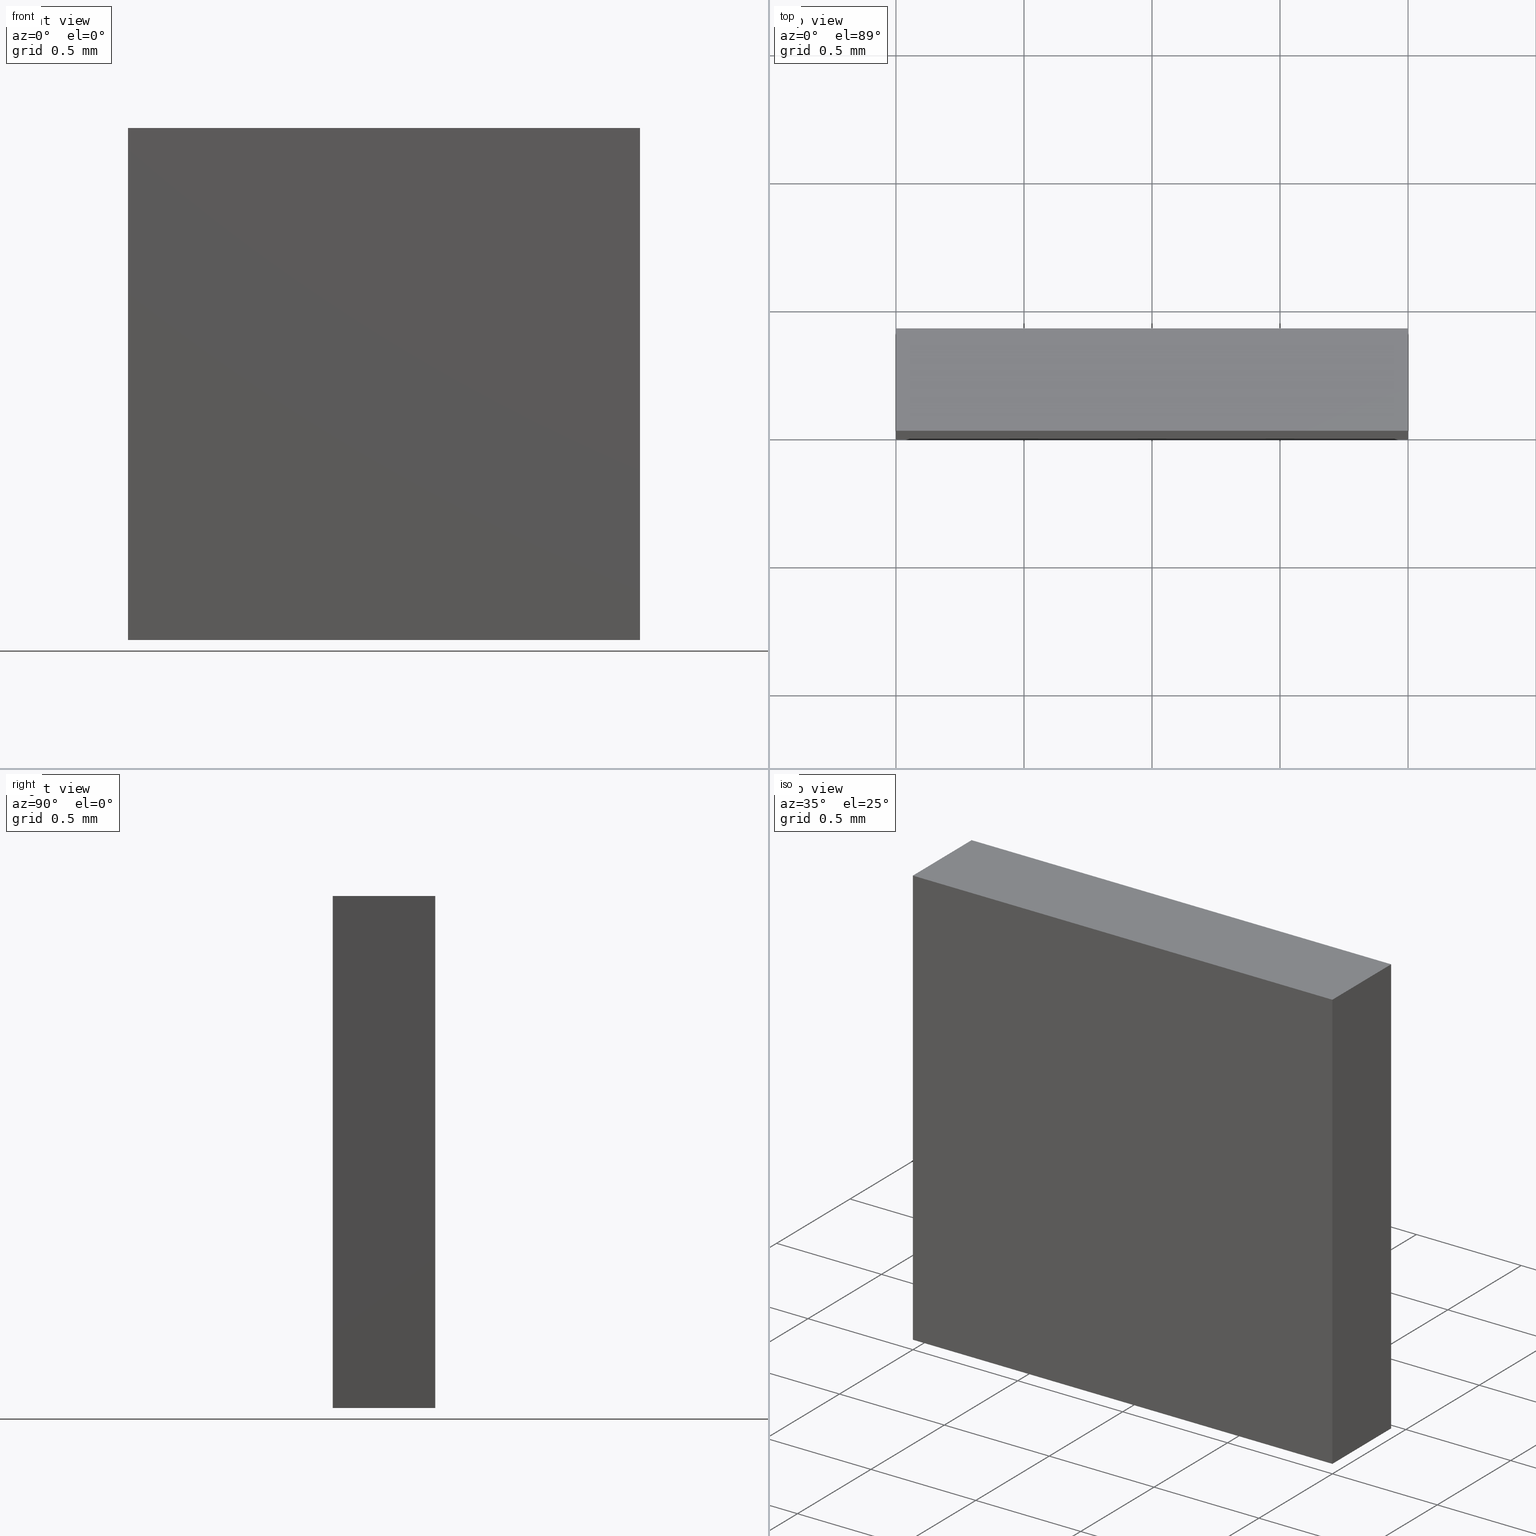
[diagram: canonical four-view strip — front | top / right | iso, engineering-drawing reading convention]
A machine part, canonical four-view strip (front | top / right | iso — engineering-drawing reading convention). The complete STEP part file that produces these views, byte-faithful:
ISO-10303-21;
HEADER;
FILE_DESCRIPTION (( 'STEP AP214' ),
    '1' );
FILE_NAME ('PKCEP4.STEP',
    '2015-01-14T06:02:23',
    ( '' ),
    ( '' ),
    'SwSTEP 2.0',
    'SolidWorks 2012',
    '' );
FILE_SCHEMA (( 'AUTOMOTIVE_DESIGN' ));
ENDSEC;

DATA;
#1 = SURFACE_SIDE_STYLE ('',( #232 ) ) ;
#2 = PLANE ( 'NONE',  #164 ) ;
#3 = SURFACE_STYLE_USAGE ( .BOTH. , #1 ) ;
#4 = FILL_AREA_STYLE_COLOUR ( '', #237 ) ;
#5 = FILL_AREA_STYLE ('',( #6 ) ) ;
#6 = FILL_AREA_STYLE_COLOUR ( '', #230 ) ;
#7 = FILL_AREA_STYLE_COLOUR ( '', #259 ) ;
#8 = FILL_AREA_STYLE ('',( #7 ) ) ;
#9 = SURFACE_SIDE_STYLE ('',( #277 ) ) ;
#10 =( LENGTH_UNIT ( ) NAMED_UNIT ( * ) SI_UNIT ( .MILLI., .METRE. ) );
#11 =( NAMED_UNIT ( * ) PLANE_ANGLE_UNIT ( ) SI_UNIT ( $, .RADIAN. ) );
#12 = SURFACE_STYLE_USAGE ( .BOTH. , #9 ) ;
#13 =( NAMED_UNIT ( * ) SI_UNIT ( $, .STERADIAN. ) SOLID_ANGLE_UNIT ( ) );
#14 =( NAMED_UNIT ( * ) PLANE_ANGLE_UNIT ( ) SI_UNIT ( $, .RADIAN. ) );
#15 =( LENGTH_UNIT ( ) NAMED_UNIT ( * ) SI_UNIT ( .MILLI., .METRE. ) );
#16 =( NAMED_UNIT ( * ) SI_UNIT ( $, .STERADIAN. ) SOLID_ANGLE_UNIT ( ) );
#17 = PLANE ( 'NONE',  #169 ) ;
#18 = CARTESIAN_POINT ( 'NONE',  ( -0.9999999999999995600, 0.4000000000000000200, 1.000000000000000200 ) ) ;
#19 = PLANE ( 'NONE',  #174 ) ;
#20 = DIRECTION ( 'NONE',  ( -1.084202172485504800E-016, 0.0000000000000000000, -1.000000000000000000 ) ) ;
#21 = DIRECTION ( 'NONE',  ( -1.000000000000000000, 0.0000000000000000000, 1.084202172485504800E-016 ) ) ;
#22 = FILL_AREA_STYLE_COLOUR ( '', #241 ) ;
#23 = FILL_AREA_STYLE ('',( #4 ) ) ;
#24 = SURFACE_SIDE_STYLE ('',( #236 ) ) ;
#25 = SURFACE_STYLE_USAGE ( .BOTH. , #24 ) ;
#26 =( LENGTH_UNIT ( ) NAMED_UNIT ( * ) SI_UNIT ( .MILLI., .METRE. ) );
#27 =( NAMED_UNIT ( * ) PLANE_ANGLE_UNIT ( ) SI_UNIT ( $, .RADIAN. ) );
#28 =( NAMED_UNIT ( * ) SI_UNIT ( $, .STERADIAN. ) SOLID_ANGLE_UNIT ( ) );
#29 = CARTESIAN_POINT ( 'NONE',  ( -1.000000000000000200, 0.4000000000000000200, -0.9999999999999997800 ) ) ;
#30 = DIRECTION ( 'NONE',  ( 1.000000000000000000, 0.0000000000000000000, -3.252606517456513300E-016 ) ) ;
#31 = DIRECTION ( 'NONE',  ( -3.252606517456513300E-016, 0.0000000000000000000, -1.000000000000000000 ) ) ;
#32 = PLANE ( 'NONE',  #179 ) ;
#33 = FILL_AREA_STYLE_COLOUR ( '', #244 ) ;
#34 = FILL_AREA_STYLE ('',( #22 ) ) ;
#35 = SURFACE_SIDE_STYLE ('',( #240 ) ) ;
#36 = SURFACE_STYLE_USAGE ( .BOTH. , #35 ) ;
#37 =( LENGTH_UNIT ( ) NAMED_UNIT ( * ) SI_UNIT ( .MILLI., .METRE. ) );
#38 =( NAMED_UNIT ( * ) PLANE_ANGLE_UNIT ( ) SI_UNIT ( $, .RADIAN. ) );
#39 =( NAMED_UNIT ( * ) SI_UNIT ( $, .STERADIAN. ) SOLID_ANGLE_UNIT ( ) );
#40 = CARTESIAN_POINT ( 'NONE',  ( 0.0000000000000000000, 0.4000000000000000200, 0.0000000000000000000 ) ) ;
#41 = DIRECTION ( 'NONE',  ( -0.0000000000000000000, 1.000000000000000000, 0.0000000000000000000 ) ) ;
#42 = DIRECTION ( 'NONE',  ( 0.0000000000000000000, -0.0000000000000000000, 1.000000000000000000 ) ) ;
#43 = PLANE ( 'NONE',  #184 ) ;
#44 = FILL_AREA_STYLE_COLOUR ( '', #212 ) ;
#45 = FILL_AREA_STYLE ('',( #33 ) ) ;
#46 = SURFACE_SIDE_STYLE ('',( #245 ) ) ;
#47 = SURFACE_STYLE_USAGE ( .BOTH. , #46 ) ;
#48 =( LENGTH_UNIT ( ) NAMED_UNIT ( * ) SI_UNIT ( .MILLI., .METRE. ) );
#49 =( NAMED_UNIT ( * ) PLANE_ANGLE_UNIT ( ) SI_UNIT ( $, .RADIAN. ) );
#50 =( NAMED_UNIT ( * ) SI_UNIT ( $, .STERADIAN. ) SOLID_ANGLE_UNIT ( ) );
#51 = CARTESIAN_POINT ( 'NONE',  ( -1.000000000000000200, 0.4000000000000000200, -0.9999999999999997800 ) ) ;
#52 = DIRECTION ( 'NONE',  ( 1.084202172485504400E-016, -0.0000000000000000000, 1.000000000000000000 ) ) ;
#53 = DIRECTION ( 'NONE',  ( 1.000000000000000000, 0.0000000000000000000, -1.084202172485504400E-016 ) ) ;
#54 = PLANE ( 'NONE',  #189 ) ;
#55 = FILL_AREA_STYLE_COLOUR ( '', #216 ) ;
#56 = FILL_AREA_STYLE ('',( #44 ) ) ;
#57 = SURFACE_SIDE_STYLE ('',( #211 ) ) ;
#58 = SURFACE_STYLE_USAGE ( .BOTH. , #57 ) ;
#59 =( LENGTH_UNIT ( ) NAMED_UNIT ( * ) SI_UNIT ( .MILLI., .METRE. ) );
#60 =( NAMED_UNIT ( * ) PLANE_ANGLE_UNIT ( ) SI_UNIT ( $, .RADIAN. ) );
#61 =( NAMED_UNIT ( * ) SI_UNIT ( $, .STERADIAN. ) SOLID_ANGLE_UNIT ( ) );
#62 = CARTESIAN_POINT ( 'NONE',  ( 0.9999999999999997800, 0.4000000000000000200, -1.000000000000000000 ) ) ;
#63 = DIRECTION ( 'NONE',  ( -1.000000000000000000, 0.0000000000000000000, 1.084202172485504400E-016 ) ) ;
#64 = DIRECTION ( 'NONE',  ( 1.084202172485504400E-016, 0.0000000000000000000, 1.000000000000000000 ) ) ;
#65 = DIRECTION ( 'NONE',  ( -0.0000000000000000000, -1.000000000000000000, -0.0000000000000000000 ) ) ;
#66 = FILL_AREA_STYLE ('',( #55 ) ) ;
#67 = SURFACE_SIDE_STYLE ('',( #215 ) ) ;
#68 = SURFACE_STYLE_USAGE ( .BOTH. , #67 ) ;
#69 =( LENGTH_UNIT ( ) NAMED_UNIT ( * ) SI_UNIT ( .MILLI., .METRE. ) );
#70 =( NAMED_UNIT ( * ) PLANE_ANGLE_UNIT ( ) SI_UNIT ( $, .RADIAN. ) );
#71 =( NAMED_UNIT ( * ) SI_UNIT ( $, .STERADIAN. ) SOLID_ANGLE_UNIT ( ) );
#72 = CARTESIAN_POINT ( 'NONE',  ( 0.0000000000000000000, 0.0000000000000000000, 0.0000000000000000000 ) ) ;
#73 = DIRECTION ( 'NONE',  ( -0.0000000000000000000, 1.000000000000000000, 0.0000000000000000000 ) ) ;
#74 = DIRECTION ( 'NONE',  ( 0.0000000000000000000, -0.0000000000000000000, 1.000000000000000000 ) ) ;
#75 = CARTESIAN_POINT ( 'NONE',  ( 1.000000000000000000, 0.4000000000000000200, 1.000000000000000000 ) ) ;
#76 = CARTESIAN_POINT ( 'NONE',  ( -0.9999999999999995600, 0.0000000000000000000, 1.000000000000000200 ) ) ;
#77 = CARTESIAN_POINT ( 'NONE',  ( -1.000000000000000200, 0.4000000000000000200, -0.9999999999999997800 ) ) ;
#78 = CARTESIAN_POINT ( 'NONE',  ( 0.9999999999999997800, 0.0000000000000000000, -1.000000000000000000 ) ) ;
#79 = DIRECTION ( 'NONE',  ( -1.084202172485504400E-016, -0.0000000000000000000, -1.000000000000000000 ) ) ;
#80 = CARTESIAN_POINT ( 'NONE',  ( -0.9999999999999995600, 0.4000000000000000200, 1.000000000000000200 ) ) ;
#81 = CARTESIAN_POINT ( 'NONE',  ( -1.000000000000000200, 0.0000000000000000000, -0.9999999999999997800 ) ) ;
#82 = DIRECTION ( 'NONE',  ( 1.000000000000000000, 0.0000000000000000000, -1.084202172485504700E-016 ) ) ;
#83 = DIRECTION ( 'NONE',  ( 1.000000000000000000, 0.0000000000000000000, -1.084202172485504700E-016 ) ) ;
#84 = CARTESIAN_POINT ( 'NONE',  ( 0.9999999999999997800, 0.4000000000000000200, -1.000000000000000000 ) ) ;
#85 = DIRECTION ( 'NONE',  ( -0.0000000000000000000, -1.000000000000000000, -0.0000000000000000000 ) ) ;
#86 = FILL_AREA_STYLE_COLOUR ( '', #248 ) ;
#87 = DIRECTION ( 'NONE',  ( 3.252606517456513300E-016, 0.0000000000000000000, 1.000000000000000000 ) ) ;
#88 = CARTESIAN_POINT ( 'NONE',  ( -0.9999999999999995600, 0.4000000000000000200, 1.000000000000000200 ) ) ;
#89 = DIRECTION ( 'NONE',  ( -0.0000000000000000000, -1.000000000000000000, -0.0000000000000000000 ) ) ;
#90 = CARTESIAN_POINT ( 'NONE',  ( -1.000000000000000200, 0.4000000000000000200, -0.9999999999999997800 ) ) ;
#91 = DIRECTION ( 'NONE',  ( 3.252606517456513300E-016, 0.0000000000000000000, 1.000000000000000000 ) ) ;
#92 = CARTESIAN_POINT ( 'NONE',  ( -1.000000000000000200, 0.4000000000000000200, -0.9999999999999997800 ) ) ;
#93 = DIRECTION ( 'NONE',  ( -1.000000000000000000, -0.0000000000000000000, 1.084202172485504400E-016 ) ) ;
#94 = CARTESIAN_POINT ( 'NONE',  ( -1.000000000000000200, 0.0000000000000000000, -0.9999999999999997800 ) ) ;
#95 = CARTESIAN_POINT ( 'NONE',  ( -1.000000000000000200, 0.0000000000000000000, -0.9999999999999997800 ) ) ;
#96 = DIRECTION ( 'NONE',  ( -1.000000000000000000, -0.0000000000000000000, 1.084202172485504400E-016 ) ) ;
#97 = DIRECTION ( 'NONE',  ( -1.084202172485504400E-016, -0.0000000000000000000, -1.000000000000000000 ) ) ;
#98 = CARTESIAN_POINT ( 'NONE',  ( 0.9999999999999997800, 0.4000000000000000200, -1.000000000000000000 ) ) ;
#99 = CARTESIAN_POINT ( 'NONE',  ( 0.9999999999999997800, 0.4000000000000000200, -1.000000000000000000 ) ) ;
#100 = DIRECTION ( 'NONE',  ( -0.0000000000000000000, -1.000000000000000000, -0.0000000000000000000 ) ) ;
#101 = CARTESIAN_POINT ( 'NONE',  ( -1.000000000000000200, 0.4000000000000000200, -0.9999999999999997800 ) ) ;
#102 = CARTESIAN_POINT ( 'NONE',  ( 0.9999999999999997800, 0.0000000000000000000, -1.000000000000000000 ) ) ;
#103 = CARTESIAN_POINT ( 'NONE',  ( -0.9999999999999995600, 0.4000000000000000200, 1.000000000000000200 ) ) ;
#104 = CARTESIAN_POINT ( 'NONE',  ( -0.9999999999999995600, 0.0000000000000000000, 1.000000000000000200 ) ) ;
#105 = CARTESIAN_POINT ( 'NONE',  ( 1.000000000000000000, 0.4000000000000000200, 1.000000000000000000 ) ) ;
#106 = CARTESIAN_POINT ( 'NONE',  ( 1.000000000000000000, 0.0000000000000000000, 1.000000000000000000 ) ) ;
#107 =( LENGTH_UNIT ( ) NAMED_UNIT ( * ) SI_UNIT ( .MILLI., .METRE. ) );
#108 =( NAMED_UNIT ( * ) PLANE_ANGLE_UNIT ( ) SI_UNIT ( $, .RADIAN. ) );
#109 =( NAMED_UNIT ( * ) SI_UNIT ( $, .STERADIAN. ) SOLID_ANGLE_UNIT ( ) );
#110 = APPLICATION_PROTOCOL_DEFINITION ( 'draft international standard', 'automotive_design', 1998, #111 ) ;
#111 = APPLICATION_CONTEXT ( 'automotive_design' ) ;
#112 = FILL_AREA_STYLE ('',( #86 ) ) ;
#113 = SURFACE_SIDE_STYLE ('',( #249 ) ) ;
#114 = SURFACE_STYLE_USAGE ( .BOTH. , #113 ) ;
#115 =( LENGTH_UNIT ( ) NAMED_UNIT ( * ) SI_UNIT ( .MILLI., .METRE. ) );
#116 =( NAMED_UNIT ( * ) PLANE_ANGLE_UNIT ( ) SI_UNIT ( $, .RADIAN. ) );
#117 =( NAMED_UNIT ( * ) SI_UNIT ( $, .STERADIAN. ) SOLID_ANGLE_UNIT ( ) );
#118 = CARTESIAN_POINT ( 'NONE',  ( 0.0000000000000000000, 0.0000000000000000000, 0.0000000000000000000 ) ) ;
#119 = DIRECTION ( 'NONE',  ( 0.0000000000000000000, 0.0000000000000000000, 1.000000000000000000 ) ) ;
#120 = DIRECTION ( 'NONE',  ( 1.000000000000000000, 0.0000000000000000000, 0.0000000000000000000 ) ) ;
#121 = PRODUCT_CONTEXT ( 'NONE', #111, 'mechanical' ) ;
#122 = APPLICATION_CONTEXT ( 'automotive_design' ) ;
#123 = APPLICATION_PROTOCOL_DEFINITION ( 'draft international standard', 'automotive_design', 1998, #122 ) ;
#124 = PRODUCT_DEFINITION_CONTEXT ( 'detailed design', #122, 'design' ) ;
#125 = PRODUCT_DEFINITION_SHAPE ( 'NONE', 'NONE',  #195 ) ;
#126 = MANIFOLD_SOLID_BREP ( 'Boss-Extrude1', #266 ) ;
#127 = UNCERTAINTY_MEASURE_WITH_UNIT (LENGTH_MEASURE( 1.000000000000000100E-005 ), #10, 'distance_accuracy_value', 'NONE');
#128 = UNCERTAINTY_MEASURE_WITH_UNIT (LENGTH_MEASURE( 1.000000000000000100E-005 ), #15, 'distance_accuracy_value', 'NONE');
#129 = UNCERTAINTY_MEASURE_WITH_UNIT (LENGTH_MEASURE( 1.000000000000000100E-005 ), #26, 'distance_accuracy_value', 'NONE');
#130 = UNCERTAINTY_MEASURE_WITH_UNIT (LENGTH_MEASURE( 1.000000000000000100E-005 ), #37, 'distance_accuracy_value', 'NONE');
#131 = UNCERTAINTY_MEASURE_WITH_UNIT (LENGTH_MEASURE( 1.000000000000000100E-005 ), #48, 'distance_accuracy_value', 'NONE');
#132 = UNCERTAINTY_MEASURE_WITH_UNIT (LENGTH_MEASURE( 1.000000000000000100E-005 ), #59, 'distance_accuracy_value', 'NONE');
#133 = UNCERTAINTY_MEASURE_WITH_UNIT (LENGTH_MEASURE( 1.000000000000000100E-005 ), #69, 'distance_accuracy_value', 'NONE');
#134 = UNCERTAINTY_MEASURE_WITH_UNIT (LENGTH_MEASURE( 1.000000000000000100E-005 ), #107, 'distance_accuracy_value', 'NONE');
#135 = ADVANCED_BREP_SHAPE_REPRESENTATION ( 'PKCEP4', ( #126, #194 ), #188 ) ;
#136 = UNCERTAINTY_MEASURE_WITH_UNIT (LENGTH_MEASURE( 1.000000000000000100E-005 ), #115, 'distance_accuracy_value', 'NONE');
#137 = PRODUCT ( 'PKCEP4', 'PKCEP4', '', ( #121 ) ) ;
#138 = ADVANCED_FACE ( 'NONE', ( #231 ), #2, .F. ) ;
#139 = ADVANCED_FACE ( 'NONE', ( #235 ), #17, .F. ) ;
#140 = ADVANCED_FACE ( 'NONE', ( #238 ), #19, .T. ) ;
#141 = ADVANCED_FACE ( 'NONE', ( #243 ), #32, .F. ) ;
#142 = ADVANCED_FACE ( 'NONE', ( #209 ), #43, .F. ) ;
#143 = ADVANCED_FACE ( 'NONE', ( #213 ), #54, .F. ) ;
#144 = SHAPE_DEFINITION_REPRESENTATION ( #125, #135 ) ;
#145 = EDGE_CURVE ( 'NONE', #278, #255, #220, .T. ) ;
#146 = EDGE_CURVE ( 'NONE', #264, #278, #217, .T. ) ;
#147 = EDGE_CURVE ( 'NONE', #256, #264, #221, .T. ) ;
#148 = EDGE_CURVE ( 'NONE', #279, #278, #219, .T. ) ;
#149 = EDGE_CURVE ( 'NONE', #254, #252, #223, .T. ) ;
#150 = EDGE_CURVE ( 'NONE', #252, #279, #225, .T. ) ;
#151 = EDGE_CURVE ( 'NONE', #256, #279, #228, .T. ) ;
#152 = EDGE_CURVE ( 'NONE', #254, #256, #200, .T. ) ;
#153 = EDGE_CURVE ( 'NONE', #253, #254, #199, .T. ) ;
#154 = EDGE_CURVE ( 'NONE', #255, #252, #202, .T. ) ;
#155 = STYLED_ITEM ( 'NONE', ( #292 ), #126 ) ;
#156 = PRESENTATION_LAYER_ASSIGNMENT (  '', '', ( #155 ) ) ;
#157 = MECHANICAL_DESIGN_GEOMETRIC_PRESENTATION_REPRESENTATION (  '', ( #155 ), #158 ) ;
#158 =( GEOMETRIC_REPRESENTATION_CONTEXT ( 3 ) GLOBAL_UNCERTAINTY_ASSIGNED_CONTEXT ( ( #127 ) ) GLOBAL_UNIT_ASSIGNED_CONTEXT ( ( #10, #11, #13 ) ) REPRESENTATION_CONTEXT ( 'NONE', 'WORKASPACE' ) );
#159 = STYLED_ITEM ( 'NONE', ( #233 ), #138 ) ;
#160 = PRESENTATION_LAYER_ASSIGNMENT (  '', '', ( #159 ) ) ;
#161 = MECHANICAL_DESIGN_GEOMETRIC_PRESENTATION_REPRESENTATION (  '', ( #159 ), #162 ) ;
#162 =( GEOMETRIC_REPRESENTATION_CONTEXT ( 3 ) GLOBAL_UNCERTAINTY_ASSIGNED_CONTEXT ( ( #128 ) ) GLOBAL_UNIT_ASSIGNED_CONTEXT ( ( #15, #14, #16 ) ) REPRESENTATION_CONTEXT ( 'NONE', 'WORKASPACE' ) );
#163 = STYLED_ITEM ( 'NONE', ( #234 ), #139 ) ;
#164 = AXIS2_PLACEMENT_3D ( 'NONE', #18, #20, #21 ) ;
#165 = PRESENTATION_LAYER_ASSIGNMENT (  '', '', ( #163 ) ) ;
#166 = MECHANICAL_DESIGN_GEOMETRIC_PRESENTATION_REPRESENTATION (  '', ( #163 ), #167 ) ;
#167 =( GEOMETRIC_REPRESENTATION_CONTEXT ( 3 ) GLOBAL_UNCERTAINTY_ASSIGNED_CONTEXT ( ( #129 ) ) GLOBAL_UNIT_ASSIGNED_CONTEXT ( ( #26, #27, #28 ) ) REPRESENTATION_CONTEXT ( 'NONE', 'WORKASPACE' ) );
#168 = STYLED_ITEM ( 'NONE', ( #239 ), #140 ) ;
#169 = AXIS2_PLACEMENT_3D ( 'NONE', #29, #30, #31 ) ;
#170 = PRESENTATION_LAYER_ASSIGNMENT (  '', '', ( #168 ) ) ;
#171 = MECHANICAL_DESIGN_GEOMETRIC_PRESENTATION_REPRESENTATION (  '', ( #168 ), #172 ) ;
#172 =( GEOMETRIC_REPRESENTATION_CONTEXT ( 3 ) GLOBAL_UNCERTAINTY_ASSIGNED_CONTEXT ( ( #130 ) ) GLOBAL_UNIT_ASSIGNED_CONTEXT ( ( #37, #38, #39 ) ) REPRESENTATION_CONTEXT ( 'NONE', 'WORKASPACE' ) );
#173 = STYLED_ITEM ( 'NONE', ( #242 ), #141 ) ;
#174 = AXIS2_PLACEMENT_3D ( 'NONE', #40, #41, #42 ) ;
#175 = PRESENTATION_LAYER_ASSIGNMENT (  '', '', ( #173 ) ) ;
#176 = MECHANICAL_DESIGN_GEOMETRIC_PRESENTATION_REPRESENTATION (  '', ( #173 ), #177 ) ;
#177 =( GEOMETRIC_REPRESENTATION_CONTEXT ( 3 ) GLOBAL_UNCERTAINTY_ASSIGNED_CONTEXT ( ( #131 ) ) GLOBAL_UNIT_ASSIGNED_CONTEXT ( ( #48, #49, #50 ) ) REPRESENTATION_CONTEXT ( 'NONE', 'WORKASPACE' ) );
#178 = STYLED_ITEM ( 'NONE', ( #210 ), #142 ) ;
#179 = AXIS2_PLACEMENT_3D ( 'NONE', #51, #52, #53 ) ;
#180 = PRESENTATION_LAYER_ASSIGNMENT (  '', '', ( #178 ) ) ;
#181 = MECHANICAL_DESIGN_GEOMETRIC_PRESENTATION_REPRESENTATION (  '', ( #178 ), #182 ) ;
#182 =( GEOMETRIC_REPRESENTATION_CONTEXT ( 3 ) GLOBAL_UNCERTAINTY_ASSIGNED_CONTEXT ( ( #132 ) ) GLOBAL_UNIT_ASSIGNED_CONTEXT ( ( #59, #60, #61 ) ) REPRESENTATION_CONTEXT ( 'NONE', 'WORKASPACE' ) );
#183 = STYLED_ITEM ( 'NONE', ( #214 ), #143 ) ;
#184 = AXIS2_PLACEMENT_3D ( 'NONE', #62, #63, #64 ) ;
#185 = PRESENTATION_LAYER_ASSIGNMENT (  '', '', ( #183 ) ) ;
#186 = MECHANICAL_DESIGN_GEOMETRIC_PRESENTATION_REPRESENTATION (  '', ( #183 ), #187 ) ;
#187 =( GEOMETRIC_REPRESENTATION_CONTEXT ( 3 ) GLOBAL_UNCERTAINTY_ASSIGNED_CONTEXT ( ( #133 ) ) GLOBAL_UNIT_ASSIGNED_CONTEXT ( ( #69, #70, #71 ) ) REPRESENTATION_CONTEXT ( 'NONE', 'WORKASPACE' ) );
#188 =( GEOMETRIC_REPRESENTATION_CONTEXT ( 3 ) GLOBAL_UNCERTAINTY_ASSIGNED_CONTEXT ( ( #134 ) ) GLOBAL_UNIT_ASSIGNED_CONTEXT ( ( #107, #108, #109 ) ) REPRESENTATION_CONTEXT ( 'NONE', 'WORKASPACE' ) );
#189 = AXIS2_PLACEMENT_3D ( 'NONE', #72, #73, #74 ) ;
#190 = STYLED_ITEM ( 'NONE', ( #250 ), #135 ) ;
#191 = PRESENTATION_LAYER_ASSIGNMENT (  '', '', ( #190 ) ) ;
#192 = MECHANICAL_DESIGN_GEOMETRIC_PRESENTATION_REPRESENTATION (  '', ( #190 ), #193 ) ;
#193 =( GEOMETRIC_REPRESENTATION_CONTEXT ( 3 ) GLOBAL_UNCERTAINTY_ASSIGNED_CONTEXT ( ( #136 ) ) GLOBAL_UNIT_ASSIGNED_CONTEXT ( ( #115, #116, #117 ) ) REPRESENTATION_CONTEXT ( 'NONE', 'WORKASPACE' ) );
#194 = AXIS2_PLACEMENT_3D ( 'NONE', #118, #119, #120 ) ;
#195 = PRODUCT_DEFINITION ( 'UNKNOWN', '', #196, #124 ) ;
#196 = PRODUCT_DEFINITION_FORMATION_WITH_SPECIFIED_SOURCE ( 'ANY', '', #137, .NOT_KNOWN. ) ;
#197 = PRODUCT_RELATED_PRODUCT_CATEGORY ( 'part', '', ( #137 ) ) ;
#198 = VECTOR ( 'NONE', #89, 1000.000000000000000 ) ;
#199 = LINE ( 'NONE', #92, #203 ) ;
#200 = LINE ( 'NONE', #90, #201 ) ;
#201 = VECTOR ( 'NONE', #91, 1000.000000000000000 ) ;
#202 = LINE ( 'NONE', #94, #204 ) ;
#203 = VECTOR ( 'NONE', #93, 1000.000000000000000 ) ;
#204 = VECTOR ( 'NONE', #96, 1000.000000000000000 ) ;
#205 = LINE ( 'NONE', #98, #208 ) ;
#206 = LINE ( 'NONE', #84, #207 ) ;
#207 = VECTOR ( 'NONE', #97, 1000.000000000000000 ) ;
#208 = VECTOR ( 'NONE', #100, 1000.000000000000000 ) ;
#209 = FACE_OUTER_BOUND ( 'NONE', #288, .T. ) ;
#210 = PRESENTATION_STYLE_ASSIGNMENT (( #58 ) ) ;
#211 = SURFACE_STYLE_FILL_AREA ( #56 ) ;
#212 = COLOUR_RGB ( '',1.000000000000000000, 1.000000000000000000, 1.000000000000000000 ) ;
#213 = FACE_OUTER_BOUND ( 'NONE', #263, .T. ) ;
#214 = PRESENTATION_STYLE_ASSIGNMENT (( #68 ) ) ;
#215 = SURFACE_STYLE_FILL_AREA ( #66 ) ;
#216 = COLOUR_RGB ( '',1.000000000000000000, 1.000000000000000000, 1.000000000000000000 ) ;
#217 = LINE ( 'NONE', #75, #222 ) ;
#218 = VECTOR ( 'NONE', #79, 1000.000000000000000 ) ;
#219 = LINE ( 'NONE', #76, #226 ) ;
#220 = LINE ( 'NONE', #78, #218 ) ;
#221 = LINE ( 'NONE', #80, #224 ) ;
#222 = VECTOR ( 'NONE', #65, 1000.000000000000000 ) ;
#223 = LINE ( 'NONE', #77, #227 ) ;
#224 = VECTOR ( 'NONE', #82, 1000.000000000000000 ) ;
#225 = LINE ( 'NONE', #81, #229 ) ;
#226 = VECTOR ( 'NONE', #83, 1000.000000000000000 ) ;
#227 = VECTOR ( 'NONE', #85, 1000.000000000000000 ) ;
#228 = LINE ( 'NONE', #88, #198 ) ;
#229 = VECTOR ( 'NONE', #87, 1000.000000000000000 ) ;
#230 = COLOUR_RGB ( '',1.000000000000000000, 1.000000000000000000, 1.000000000000000000 ) ;
#231 = FACE_OUTER_BOUND ( 'NONE', #251, .T. ) ;
#232 = SURFACE_STYLE_FILL_AREA ( #5 ) ;
#233 = PRESENTATION_STYLE_ASSIGNMENT (( #3 ) ) ;
#234 = PRESENTATION_STYLE_ASSIGNMENT (( #25 ) ) ;
#235 = FACE_OUTER_BOUND ( 'NONE', #258, .T. ) ;
#236 = SURFACE_STYLE_FILL_AREA ( #23 ) ;
#237 = COLOUR_RGB ( '',1.000000000000000000, 1.000000000000000000, 1.000000000000000000 ) ;
#238 = FACE_OUTER_BOUND ( 'NONE', #285, .T. ) ;
#239 = PRESENTATION_STYLE_ASSIGNMENT (( #36 ) ) ;
#240 = SURFACE_STYLE_FILL_AREA ( #34 ) ;
#241 = COLOUR_RGB ( '',1.000000000000000000, 1.000000000000000000, 1.000000000000000000 ) ;
#242 = PRESENTATION_STYLE_ASSIGNMENT (( #47 ) ) ;
#243 = FACE_OUTER_BOUND ( 'NONE', #257, .T. ) ;
#244 = COLOUR_RGB ( '',1.000000000000000000, 1.000000000000000000, 1.000000000000000000 ) ;
#245 = SURFACE_STYLE_FILL_AREA ( #45 ) ;
#246 = EDGE_CURVE ( 'NONE', #264, #253, #206, .T. ) ;
#247 = EDGE_CURVE ( 'NONE', #253, #255, #205, .T. ) ;
#248 = COLOUR_RGB ( '',1.000000000000000000, 0.5019607843137254800, 0.5019607843137254800 ) ;
#249 = SURFACE_STYLE_FILL_AREA ( #112 ) ;
#250 = PRESENTATION_STYLE_ASSIGNMENT (( #114 ) ) ;
#251 = EDGE_LOOP ( 'NONE', ( #283, #284, #275, #265 ) ) ;
#252 = VERTEX_POINT ( 'NONE', #95 ) ;
#253 = VERTEX_POINT ( 'NONE', #99 ) ;
#254 = VERTEX_POINT ( 'NONE', #101 ) ;
#255 = VERTEX_POINT ( 'NONE', #102 ) ;
#256 = VERTEX_POINT ( 'NONE', #103 ) ;
#257 = EDGE_LOOP ( 'NONE', ( #274, #261, #262, #260 ) ) ;
#258 = EDGE_LOOP ( 'NONE', ( #282, #280, #286, #287 ) ) ;
#259 = COLOUR_RGB ( '',1.000000000000000000, 1.000000000000000000, 1.000000000000000000 ) ;
#260 = ORIENTED_EDGE ( 'NONE', *, *, #247, .T. ) ;
#261 = ORIENTED_EDGE ( 'NONE', *, *, #149, .F. ) ;
#262 = ORIENTED_EDGE ( 'NONE', *, *, #153, .F. ) ;
#263 = EDGE_LOOP ( 'NONE', ( #273, #272, #270, #271 ) ) ;
#264 = VERTEX_POINT ( 'NONE', #105 ) ;
#265 = ORIENTED_EDGE ( 'NONE', *, *, #151, .T. ) ;
#266 = CLOSED_SHELL ( 'NONE', ( #139, #138, #142, #141, #140, #143 ) ) ;
#267 = ORIENTED_EDGE ( 'NONE', *, *, #246, .T. ) ;
#268 = ORIENTED_EDGE ( 'NONE', *, *, #152, .T. ) ;
#269 = ORIENTED_EDGE ( 'NONE', *, *, #153, .T. ) ;
#270 = ORIENTED_EDGE ( 'NONE', *, *, #145, .F. ) ;
#271 = ORIENTED_EDGE ( 'NONE', *, *, #148, .F. ) ;
#272 = ORIENTED_EDGE ( 'NONE', *, *, #154, .F. ) ;
#273 = ORIENTED_EDGE ( 'NONE', *, *, #150, .F. ) ;
#274 = ORIENTED_EDGE ( 'NONE', *, *, #154, .T. ) ;
#275 = ORIENTED_EDGE ( 'NONE', *, *, #147, .F. ) ;
#276 = ORIENTED_EDGE ( 'NONE', *, *, #146, .T. ) ;
#277 = SURFACE_STYLE_FILL_AREA ( #8 ) ;
#278 = VERTEX_POINT ( 'NONE', #106 ) ;
#279 = VERTEX_POINT ( 'NONE', #104 ) ;
#280 = ORIENTED_EDGE ( 'NONE', *, *, #151, .F. ) ;
#281 = ORIENTED_EDGE ( 'NONE', *, *, #147, .T. ) ;
#282 = ORIENTED_EDGE ( 'NONE', *, *, #150, .T. ) ;
#283 = ORIENTED_EDGE ( 'NONE', *, *, #148, .T. ) ;
#284 = ORIENTED_EDGE ( 'NONE', *, *, #146, .F. ) ;
#285 = EDGE_LOOP ( 'NONE', ( #268, #281, #267, #269 ) ) ;
#286 = ORIENTED_EDGE ( 'NONE', *, *, #152, .F. ) ;
#287 = ORIENTED_EDGE ( 'NONE', *, *, #149, .T. ) ;
#288 = EDGE_LOOP ( 'NONE', ( #289, #291, #290, #276 ) ) ;
#289 = ORIENTED_EDGE ( 'NONE', *, *, #145, .T. ) ;
#290 = ORIENTED_EDGE ( 'NONE', *, *, #246, .F. ) ;
#291 = ORIENTED_EDGE ( 'NONE', *, *, #247, .F. ) ;
#292 = PRESENTATION_STYLE_ASSIGNMENT (( #12 ) ) ;
ENDSEC;
END-ISO-10303-21;
